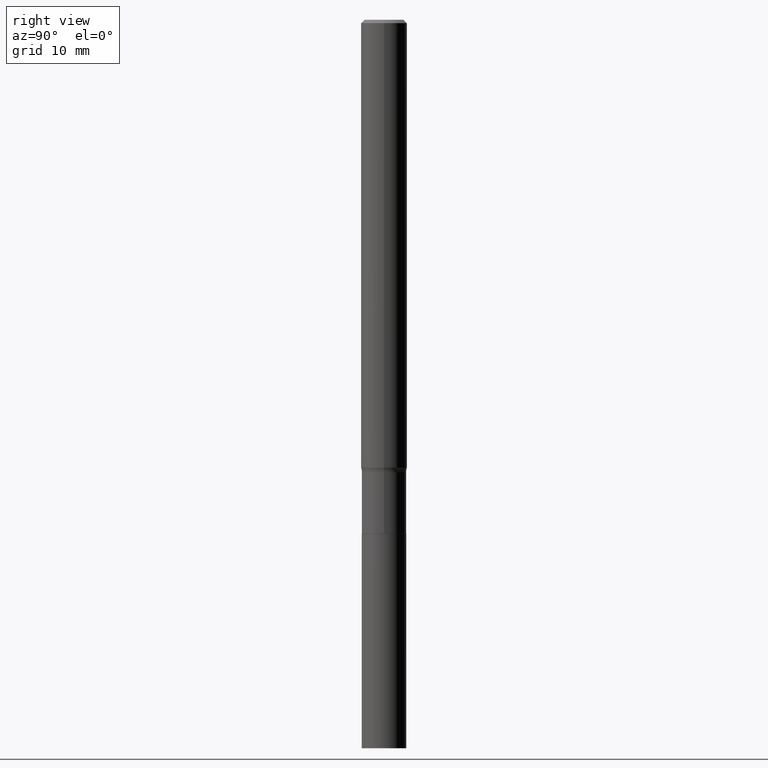
[diagram: clean part render]
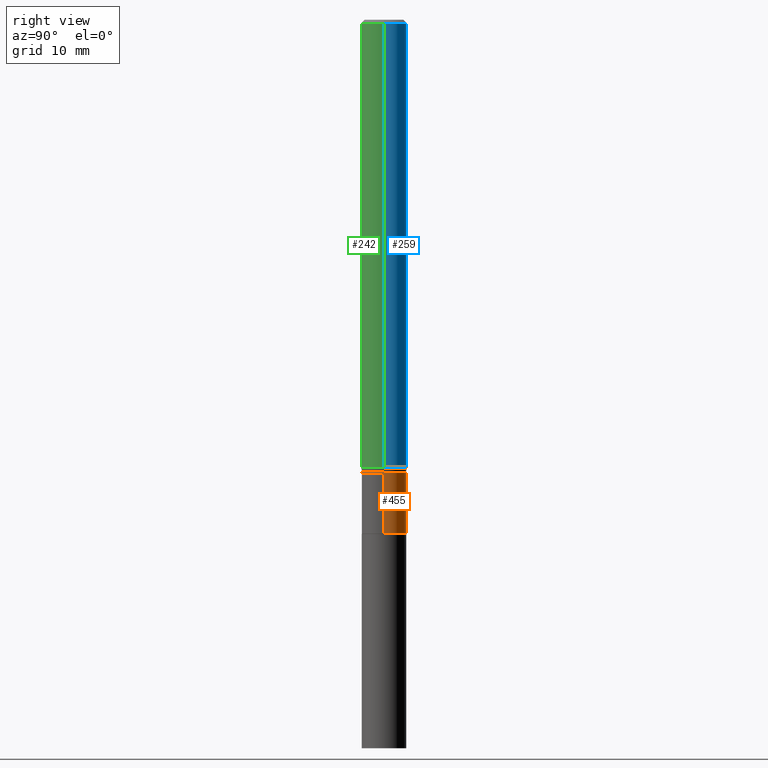
[diagram: same view with three faces highlighted in distinct colors, each labeled with its STEP entity id]
A machine part, right view with three faces highlighted in distinct colors.
Their STEP definitions:

[orange] entity #455 — the highlighted cylindrical surface (edge-blend (fillet) strip) has radius 2.8994 mm, axis along (-0, 0, 1).
#1 = EDGE_CURVE ( 'NONE', #262, #442, #53, .T. ) ;
#11 = CIRCLE ( 'NONE', #69, 0.1141499999999999598 ) ;
#16 = DIRECTION ( 'NONE',  ( -2.445468806185136877E-29, 3.491481338843145188E-15, 1.000000000000000000 ) ) ;
#22 = DIRECTION ( 'NONE',  ( 1.000000000000000000, -6.982962677686266711E-15, 4.876176775795935793E-29 ) ) ;
#30 = DIRECTION ( 'NONE',  ( -2.445468806185136597E-29, 3.491481338843145583E-15, 1.000000000000000000 ) ) ;
#46 = VECTOR ( 'NONE', #145, 39.37007874015748143 ) ;
#53 = LINE ( 'NONE', #453, #307 ) ;
#69 = AXIS2_PLACEMENT_3D ( 'NONE', #95, #30, #281 ) ;
#77 = ORIENTED_EDGE ( 'NONE', *, *, #445, .T. ) ;
#79 = EDGE_LOOP ( 'NONE', ( #238, #77, #360, #98 ) ) ;
#82 = LINE ( 'NONE', #302, #46 ) ;
#84 = AXIS2_PLACEMENT_3D ( 'NONE', #136, #309, #22 ) ;
#95 = CARTESIAN_POINT ( 'NONE',  ( 5.683269505574258330E-29, -8.114202631471472021E-15, -2.324000000000000288 ) ) ;
#98 = ORIENTED_EDGE ( 'NONE', *, *, #1, .F. ) ;
#115 = EDGE_CURVE ( 'NONE', #442, #331, #11, .T. ) ;
#131 = CARTESIAN_POINT ( 'NONE',  ( -0.1141500000000000015, -7.850756946598864420E-15, -2.637700000000000156 ) ) ;
#136 = CARTESIAN_POINT ( 'NONE',  ( 0.000000000000000000, 0.000000000000000000, 0.000000000000000000 ) ) ;
#144 = CIRCLE ( 'NONE', #178, 0.1141500000000000015 ) ;
#145 = DIRECTION ( 'NONE',  ( -2.445468806185136877E-29, 3.491481338843145188E-15, 1.000000000000000000 ) ) ;
#149 = EDGE_CURVE ( 'NONE', #262, #461, #144, .T. ) ;
#152 = DIRECTION ( 'NONE',  ( 1.000000000000000000, -6.982962677686264344E-15, 0.000000000000000000 ) ) ;
#178 = AXIS2_PLACEMENT_3D ( 'NONE', #204, #391, #152 ) ;
#204 = CARTESIAN_POINT ( 'NONE',  ( 6.450413070074535567E-29, -9.209480327466565169E-15, -2.637700000000000156 ) ) ;
#208 = CARTESIAN_POINT ( 'NONE',  ( -0.1141499999999999598, -7.850756946598864420E-15, -2.324000000000000288 ) ) ;
#232 = CARTESIAN_POINT ( 'NONE',  ( 0.1141500000000000015, -1.000658551712445131E-14, -2.637700000000000156 ) ) ;
#238 = ORIENTED_EDGE ( 'NONE', *, *, #149, .T. ) ;
#258 = FACE_OUTER_BOUND ( 'NONE', #79, .T. ) ;
#262 = VERTEX_POINT ( 'NONE', #232 ) ;
#267 = CARTESIAN_POINT ( 'NONE',  ( 0.1141499999999999598, -8.911307821129359738E-15, -2.324000000000000288 ) ) ;
#281 = DIRECTION ( 'NONE',  ( 1.000000000000000000, -6.982962677686267499E-15, 0.000000000000000000 ) ) ;
#302 = CARTESIAN_POINT ( 'NONE',  ( -0.1141499999999999737, 8.110845328701541754E-16, -5.614964405525973971E-30 ) ) ;
#307 = VECTOR ( 'NONE', #16, 39.37007874015748143 ) ;
#309 = DIRECTION ( 'NONE',  ( -2.445468806185136597E-29, 3.491481338843145583E-15, 1.000000000000000000 ) ) ;
#331 = VERTEX_POINT ( 'NONE', #208 ) ;
#360 = ORIENTED_EDGE ( 'NONE', *, *, #115, .F. ) ;
#363 = CYLINDRICAL_SURFACE ( 'NONE', #84, 0.1141499999999999737 ) ;
#391 = DIRECTION ( 'NONE',  ( -2.445468806185136597E-29, 3.491481338843145583E-15, 1.000000000000000000 ) ) ;
#442 = VERTEX_POINT ( 'NONE', #267 ) ;
#445 = EDGE_CURVE ( 'NONE', #461, #331, #82, .T. ) ;
#453 = CARTESIAN_POINT ( 'NONE',  ( 0.1141499999999999737, -7.971051896578871257E-16, 5.566155789571059486E-30 ) ) ;
#455 = ADVANCED_FACE ( 'NONE', ( #258 ), #363, .T. ) ;
#461 = VERTEX_POINT ( 'NONE', #131 ) ;

[blue] entity #259 — the highlighted cylindrical surface (edge-blend (fillet) strip) has radius 2.9997 mm, axis along (-0, 0, 1).
#18 = EDGE_LOOP ( 'NONE', ( #409, #287, #411, #185 ) ) ;
#34 = VECTOR ( 'NONE', #128, 39.37007874015748143 ) ;
#38 = VECTOR ( 'NONE', #452, 39.37007874015748143 ) ;
#52 = LINE ( 'NONE', #88, #34 ) ;
#87 = DIRECTION ( 'NONE',  ( 1.000000000000000000, -6.982962677686266711E-15, 4.876176775795936353E-29 ) ) ;
#88 = CARTESIAN_POINT ( 'NONE',  ( 0.1181000000000001493, -8.246878922347491501E-16, 5.758764772215008148E-30 ) ) ;
#109 = VERTEX_POINT ( 'NONE', #348 ) ;
#116 = LINE ( 'NONE', #300, #38 ) ;
#128 = DIRECTION ( 'NONE',  ( -2.445468806185136877E-29, 3.491481338843145188E-15, 1.000000000000000000 ) ) ;
#140 = EDGE_CURVE ( 'NONE', #109, #213, #254, .T. ) ;
#156 = CARTESIAN_POINT ( 'NONE',  ( 0.1181000000000002881, -8.852206280989350108E-15, -2.299172646133749609 ) ) ;
#161 = CARTESIAN_POINT ( 'NONE',  ( 5.622554986154221751E-29, -8.027518388754600268E-15, -2.299172646133749609 ) ) ;
#170 = FACE_OUTER_BOUND ( 'NONE', #18, .T. ) ;
#185 = ORIENTED_EDGE ( 'NONE', *, *, #325, .F. ) ;
#193 = AXIS2_PLACEMENT_3D ( 'NONE', #161, #233, #215 ) ;
#213 = VERTEX_POINT ( 'NONE', #248 ) ;
#215 = DIRECTION ( 'NONE',  ( 1.000000000000000000, -6.982962677686271444E-15, 0.000000000000000000 ) ) ;
#221 = CIRCLE ( 'NONE', #193, 0.1181000000000003020 ) ;
#233 = DIRECTION ( 'NONE',  ( -2.445468806185136597E-29, 3.491481338843145583E-15, 1.000000000000000000 ) ) ;
#245 = DIRECTION ( 'NONE',  ( -2.445468806185136597E-29, 3.491481338843145583E-15, 1.000000000000000000 ) ) ;
#248 = CARTESIAN_POINT ( 'NONE',  ( -0.1180999999999999966, -3.205534019403422275E-15, -0.01771500000000009872 ) ) ;
#254 = CIRCLE ( 'NONE', #373, 0.1180999999999999966 ) ;
#259 = ADVANCED_FACE ( 'NONE', ( #170 ), #274, .T. ) ;
#274 = CYLINDRICAL_SURFACE ( 'NONE', #448, 0.1181000000000001493 ) ;
#277 = CARTESIAN_POINT ( 'NONE',  ( -0.1181000000000002881, -7.188367417821919704E-15, -2.299172646133749609 ) ) ;
#287 = ORIENTED_EDGE ( 'NONE', *, *, #439, .T. ) ;
#300 = CARTESIAN_POINT ( 'NONE',  ( -0.1181000000000001493, 8.391509709326793804E-16, -5.809262341591050790E-30 ) ) ;
#325 = EDGE_CURVE ( 'NONE', #438, #109, #52, .T. ) ;
#328 = DIRECTION ( 'NONE',  ( -2.445468806185136597E-29, 3.491481338843145583E-15, 1.000000000000000000 ) ) ;
#332 = VERTEX_POINT ( 'NONE', #277 ) ;
#336 = EDGE_CURVE ( 'NONE', #438, #332, #221, .T. ) ;
#348 = CARTESIAN_POINT ( 'NONE',  ( 0.1180999999999999966, -8.865394841523547570E-16, -0.01771500000000009872 ) ) ;
#373 = AXIS2_PLACEMENT_3D ( 'NONE', #406, #328, #443 ) ;
#406 = CARTESIAN_POINT ( 'NONE',  ( 4.332147990156994116E-31, -6.185159191760666697E-17, -0.01771500000000009872 ) ) ;
#409 = ORIENTED_EDGE ( 'NONE', *, *, #336, .T. ) ;
#411 = ORIENTED_EDGE ( 'NONE', *, *, #140, .F. ) ;
#417 = CARTESIAN_POINT ( 'NONE',  ( 0.000000000000000000, 0.000000000000000000, 0.000000000000000000 ) ) ;
#438 = VERTEX_POINT ( 'NONE', #156 ) ;
#439 = EDGE_CURVE ( 'NONE', #332, #213, #116, .T. ) ;
#443 = DIRECTION ( 'NONE',  ( 1.000000000000000000, -6.982962677686266711E-15, 0.000000000000000000 ) ) ;
#448 = AXIS2_PLACEMENT_3D ( 'NONE', #417, #245, #87 ) ;
#452 = DIRECTION ( 'NONE',  ( -2.445468806185136877E-29, 3.491481338843145188E-15, 1.000000000000000000 ) ) ;

[green] entity #242 — the highlighted cylindrical surface (edge-blend (fillet) strip) has radius 2.9997 mm, axis along (-0, 0, 1).
#10 = ORIENTED_EDGE ( 'NONE', *, *, #439, .F. ) ;
#34 = VECTOR ( 'NONE', #128, 39.37007874015748143 ) ;
#38 = VECTOR ( 'NONE', #452, 39.37007874015748143 ) ;
#48 = DIRECTION ( 'NONE',  ( -2.445468806185136597E-29, 3.491481338843145583E-15, 1.000000000000000000 ) ) ;
#52 = LINE ( 'NONE', #88, #34 ) ;
#88 = CARTESIAN_POINT ( 'NONE',  ( 0.1181000000000001493, -8.246878922347491501E-16, 5.758764772215008148E-30 ) ) ;
#109 = VERTEX_POINT ( 'NONE', #348 ) ;
#110 = CARTESIAN_POINT ( 'NONE',  ( 4.332147990156994116E-31, -6.185159191760666697E-17, -0.01771500000000009872 ) ) ;
#116 = LINE ( 'NONE', #300, #38 ) ;
#124 = DIRECTION ( 'NONE',  ( 1.000000000000000000, -6.982962677686266711E-15, 4.876176775795936353E-29 ) ) ;
#128 = DIRECTION ( 'NONE',  ( -2.445468806185136877E-29, 3.491481338843145188E-15, 1.000000000000000000 ) ) ;
#130 = EDGE_CURVE ( 'NONE', #332, #438, #364, .T. ) ;
#132 = AXIS2_PLACEMENT_3D ( 'NONE', #312, #166, #124 ) ;
#138 = CIRCLE ( 'NONE', #410, 0.1180999999999999966 ) ;
#143 = EDGE_CURVE ( 'NONE', #213, #109, #138, .T. ) ;
#147 = DIRECTION ( 'NONE',  ( 1.000000000000000000, -6.982962677686271444E-15, 0.000000000000000000 ) ) ;
#156 = CARTESIAN_POINT ( 'NONE',  ( 0.1181000000000002881, -8.852206280989350108E-15, -2.299172646133749609 ) ) ;
#166 = DIRECTION ( 'NONE',  ( -2.445468806185136597E-29, 3.491481338843145583E-15, 1.000000000000000000 ) ) ;
#181 = EDGE_LOOP ( 'NONE', ( #10, #306, #468, #405 ) ) ;
#213 = VERTEX_POINT ( 'NONE', #248 ) ;
#242 = ADVANCED_FACE ( 'NONE', ( #435 ), #352, .T. ) ;
#248 = CARTESIAN_POINT ( 'NONE',  ( -0.1180999999999999966, -3.205534019403422275E-15, -0.01771500000000009872 ) ) ;
#277 = CARTESIAN_POINT ( 'NONE',  ( -0.1181000000000002881, -7.188367417821919704E-15, -2.299172646133749609 ) ) ;
#300 = CARTESIAN_POINT ( 'NONE',  ( -0.1181000000000001493, 8.391509709326793804E-16, -5.809262341591050790E-30 ) ) ;
#306 = ORIENTED_EDGE ( 'NONE', *, *, #130, .T. ) ;
#312 = CARTESIAN_POINT ( 'NONE',  ( 0.000000000000000000, 0.000000000000000000, 0.000000000000000000 ) ) ;
#314 = CARTESIAN_POINT ( 'NONE',  ( 5.622554986154221751E-29, -8.027518388754600268E-15, -2.299172646133749609 ) ) ;
#325 = EDGE_CURVE ( 'NONE', #438, #109, #52, .T. ) ;
#332 = VERTEX_POINT ( 'NONE', #277 ) ;
#333 = AXIS2_PLACEMENT_3D ( 'NONE', #314, #465, #147 ) ;
#348 = CARTESIAN_POINT ( 'NONE',  ( 0.1180999999999999966, -8.865394841523547570E-16, -0.01771500000000009872 ) ) ;
#352 = CYLINDRICAL_SURFACE ( 'NONE', #132, 0.1181000000000001493 ) ;
#364 = CIRCLE ( 'NONE', #333, 0.1181000000000003020 ) ;
#405 = ORIENTED_EDGE ( 'NONE', *, *, #143, .F. ) ;
#410 = AXIS2_PLACEMENT_3D ( 'NONE', #110, #48, #420 ) ;
#420 = DIRECTION ( 'NONE',  ( 1.000000000000000000, -6.982962677686266711E-15, 0.000000000000000000 ) ) ;
#435 = FACE_OUTER_BOUND ( 'NONE', #181, .T. ) ;
#438 = VERTEX_POINT ( 'NONE', #156 ) ;
#439 = EDGE_CURVE ( 'NONE', #332, #213, #116, .T. ) ;
#452 = DIRECTION ( 'NONE',  ( -2.445468806185136877E-29, 3.491481338843145188E-15, 1.000000000000000000 ) ) ;
#465 = DIRECTION ( 'NONE',  ( -2.445468806185136597E-29, 3.491481338843145583E-15, 1.000000000000000000 ) ) ;
#468 = ORIENTED_EDGE ( 'NONE', *, *, #325, .T. ) ;